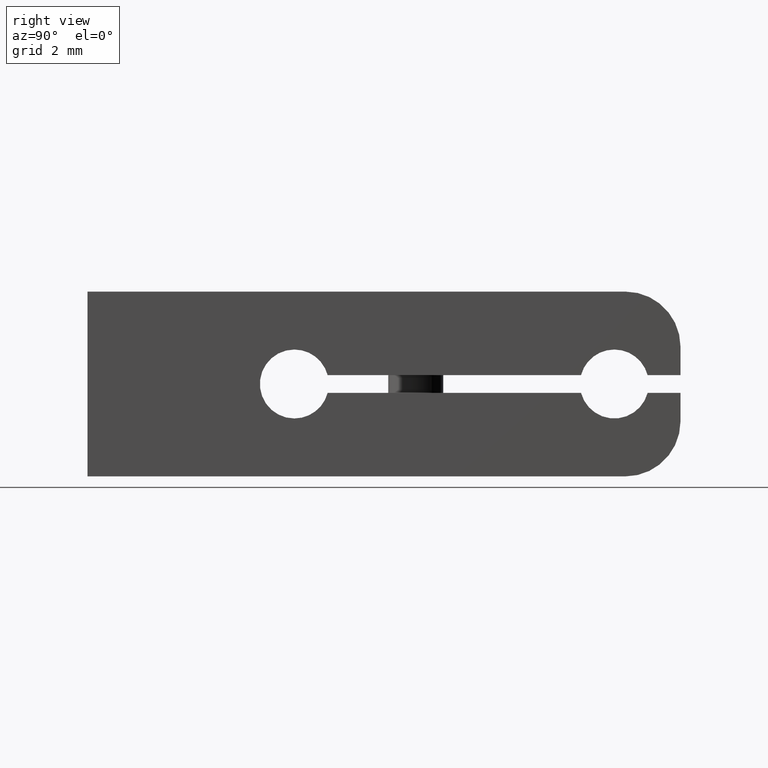
[diagram: clean part render]
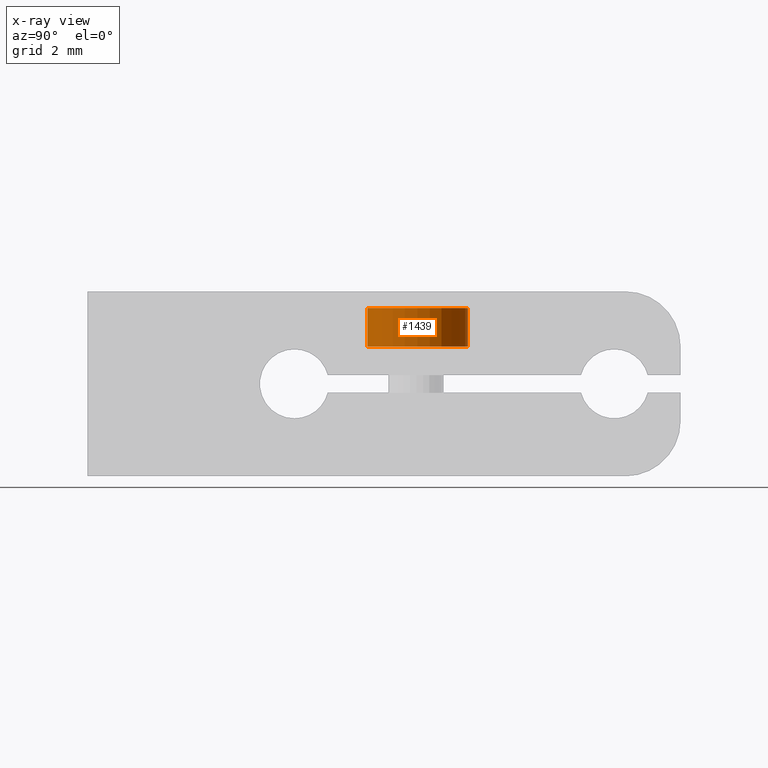
[diagram: x-ray — body ghosted, one internal face saturated and labeled with its STEP entity id]
A machine part, right view, then the same camera in x-ray: the body is ghosted and one INTERNAL B-rep face — a face not visible from any outside direction — is saturated and labeled: STEP entity #1439.
In plain terms, the highlighted cylindrical surface (partial cylindrical patch) has radius 1.9 mm, axis along (0, 0, -1).
Its self-contained STEP definition (entity closure, byte-faithful):
#71 = CARTESIAN_POINT ( 'NONE',  ( -1.054711873393889420E-16, 1.700000000000000178, -1.899999999999999689 ) ) ;
#119 = CARTESIAN_POINT ( 'NONE',  ( -1.054711873393898541E-16, 1.999999999999998224, -1.900000000000016342 ) ) ;
#170 = EDGE_CURVE ( 'NONE', #782, #938, #471, .T. ) ;
#213 = DIRECTION ( 'NONE',  ( 0.000000000000000000, -1.000000000000000000, 0.000000000000000000 ) ) ;
#284 = ORIENTED_EDGE ( 'NONE', *, *, #170, .T. ) ;
#343 = EDGE_CURVE ( 'NONE', #868, #2083, #1445, .T. ) ;
#345 = DIRECTION ( 'NONE',  ( 0.000000000000000000, -1.000000000000000000, 0.000000000000000000 ) ) ;
#383 = FACE_OUTER_BOUND ( 'NONE', #1654, .T. ) ;
#471 = CIRCLE ( 'NONE', #1312, 1.900000000000016342 ) ;
#556 = DIRECTION ( 'NONE',  ( -0.000000000000000000, -1.000000000000000000, -0.000000000000000000 ) ) ;
#567 = DIRECTION ( 'NONE',  ( 5.551115123125734015E-17, 0.000000000000000000, 1.000000000000000000 ) ) ;
#587 = DIRECTION ( 'NONE',  ( 0.000000000000000000, 1.000000000000000000, 0.000000000000000000 ) ) ;
#616 = ORIENTED_EDGE ( 'NONE', *, *, #343, .T. ) ;
#709 = CARTESIAN_POINT ( 'NONE',  ( 0.000000000000000000, 1.999999999999998224, 0.000000000000000000 ) ) ;
#782 = VERTEX_POINT ( 'NONE', #71 ) ;
#868 = VERTEX_POINT ( 'NONE', #1661 ) ;
#938 = VERTEX_POINT ( 'NONE', #1288 ) ;
#942 = EDGE_CURVE ( 'NONE', #938, #868, #1326, .T. ) ;
#1037 = CARTESIAN_POINT ( 'NONE',  ( 3.381540791773889504E-16, 1.999999999999998224, 1.900000000000016342 ) ) ;
#1041 = CARTESIAN_POINT ( 'NONE',  ( -1.054711873393889420E-16, 0.2999999999999981570, -1.899999999999999689 ) ) ;
#1253 = DIRECTION ( 'NONE',  ( 5.551115123125734015E-17, 0.000000000000000000, 1.000000000000000000 ) ) ;
#1288 = CARTESIAN_POINT ( 'NONE',  ( 3.381540791773859922E-16, 1.700000000000000178, 1.899999999999999689 ) ) ;
#1312 = AXIS2_PLACEMENT_3D ( 'NONE', #2069, #556, #567 ) ;
#1326 = LINE ( 'NONE', #1037, #1996 ) ;
#1344 = AXIS2_PLACEMENT_3D ( 'NONE', #2101, #587, #1253 ) ;
#1349 = EDGE_CURVE ( 'NONE', #782, #2083, #1621, .T. ) ;
#1413 = CYLINDRICAL_SURFACE ( 'NONE', #2113, 1.900000000000016342 ) ;
#1439 = ADVANCED_FACE ( 'NONE', ( #383 ), #1413, .T. ) ;
#1445 = CIRCLE ( 'NONE', #1344, 1.900000000000016342 ) ;
#1541 = DIRECTION ( 'NONE',  ( -5.551115123125734015E-17, 0.000000000000000000, -1.000000000000000000 ) ) ;
#1578 = VECTOR ( 'NONE', #345, 1000.000000000000000 ) ;
#1621 = LINE ( 'NONE', #119, #1578 ) ;
#1654 = EDGE_LOOP ( 'NONE', ( #284, #1678, #616, #1814 ) ) ;
#1661 = CARTESIAN_POINT ( 'NONE',  ( 3.381540791773859922E-16, 0.2999999999999981570, 1.899999999999999689 ) ) ;
#1678 = ORIENTED_EDGE ( 'NONE', *, *, #942, .T. ) ;
#1738 = DIRECTION ( 'NONE',  ( 0.000000000000000000, -1.000000000000000000, 0.000000000000000000 ) ) ;
#1814 = ORIENTED_EDGE ( 'NONE', *, *, #1349, .F. ) ;
#1996 = VECTOR ( 'NONE', #213, 1000.000000000000000 ) ;
#2069 = CARTESIAN_POINT ( 'NONE',  ( 0.000000000000000000, 1.700000000000000178, 0.000000000000000000 ) ) ;
#2083 = VERTEX_POINT ( 'NONE', #1041 ) ;
#2101 = CARTESIAN_POINT ( 'NONE',  ( 0.000000000000000000, 0.2999999999999981570, 0.000000000000000000 ) ) ;
#2113 = AXIS2_PLACEMENT_3D ( 'NONE', #709, #1738, #1541 ) ;